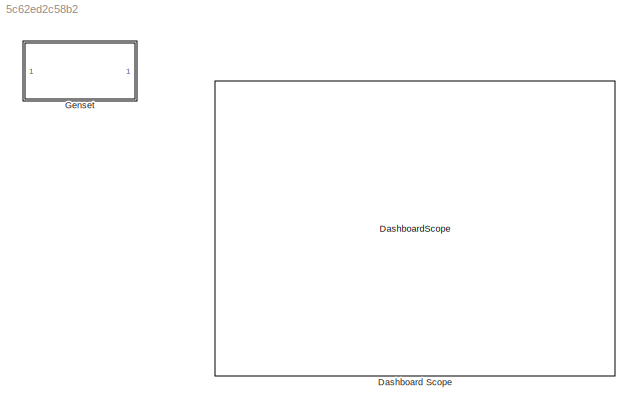
MODEL slx_5c62ed2c58b2
KIND model
CONFIG AbsTol = auto
CONFIG EnableMultiTasking = off
CONFIG FixedStep = 1
CONFIG MaxStep = auto
CONFIG MinStep = auto
CONFIG RelTol = 1e-3
CONFIG SampleTimeConstraint = Unconstrained
CONFIG SolverName = FixedStepAuto
CONFIG StartTime = 0.0
CONFIG StopTime = 3600
BLOCK [DashboardScope] Dashboard Scope
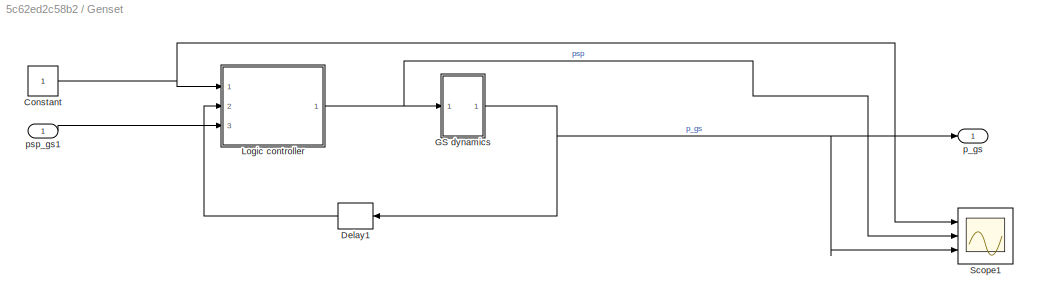
BLOCK [SubSystem] Genset
  Ports = [1, 1]
  RequestExecContextInheritance = off
BLOCK [Constant] Genset/Constant
BLOCK [Delay] Genset/Delay1
  DelayLength = 1
  InitialCondition = 0
  InputPortMap = u0
  Ports = [1, 1]
  UseCircularBuffer = on
  UserDataPersistent = on
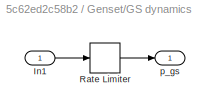
BLOCK [SubSystem] Genset/GS dynamics
  Ports = [1, 1]
  RequestExecContextInheritance = off
BLOCK [Inport] Genset/GS dynamics/In1
BLOCK [RateLimiter] Genset/GS dynamics/Rate Limiter
  FallingSlewLimit = -(psp_EP/t)/60
  RisingSlewLimit = (psp_EP/t)/60
  SampleTimeMode = inherited
BLOCK [Outport] Genset/GS dynamics/p_gs
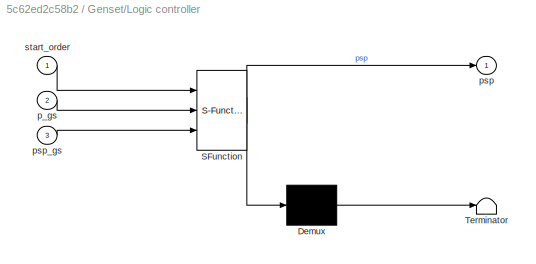
BLOCK [SubSystem] Genset/Logic controller
  AttributesFormatString = %<BlockType>
  Description = vhk,ncg,vbh,v
  ErrorFcn = Stateflow.Translate.translate
  PermitHierarchicalResolution = ExplicitOnly
  Ports = [3, 1]
  RequestExecContextInheritance = off
  SFBlockType = Chart
  TreatAsAtomicUnit = on
BLOCK [Demux] Genset/Logic controller/ Demux 
  Outputs = 1
  Ports = [1, 1]
BLOCK [S-Function] Genset/Logic controller/ SFunction 
  EnableBusSupport = on
  FunctionName = sf_sfun
  PortCounts = [3 2]
  Ports = [3, 2]
  SFcnIsStateOwnerBlock = off
  SFunctionDeploymentMode = off
  Tag = Stateflow S-Function 3
BLOCK [Terminator] Genset/Logic controller/ Terminator 
BLOCK [Inport] Genset/Logic controller/p_gs
  Port = 2
BLOCK [Outport] Genset/Logic controller/psp
BLOCK [Inport] Genset/Logic controller/psp_gs
  Port = 3
BLOCK [Inport] Genset/Logic controller/start_order
BLOCK [Scope] Genset/Scope1
  Floating = off
  NumInputPorts = 3
  Ports = [3]
  ScopeSpecificationString = Simulink.scopes.TimeScopeBlockCfg('CurrentConfiguration', extmgr.ConfigurationSet(extmgr.Configuration('Core','General UI',true),extmgr.Configuration('Core','Source UI',true),extmgr.Configuration('Sources','WiredSimulink',true),extmgr.Configuration('Visuals','Time Domain',true,'PlotType','Line','SerializedDisplays',{struct('MinYLimReal','0.9974','MaxYLimReal','1.00212','YLabelReal','','MinYLimMag'...<+1672ch>
BLOCK [Outport] Genset/p_gs
BLOCK [Inport] Genset/psp_gs1
NET Genset/Constant:1 -> Genset/Logic controller:1, Genset/Scope1:1
LINE Genset/Delay1:1 -> Genset/Logic controller:2
LINE Genset/GS dynamics/In1:1 -> Genset/GS dynamics/Rate Limiter:1
LINE Genset/GS dynamics/Rate Limiter:1 -> Genset/GS dynamics/p_gs:1
NET Genset/GS dynamics:1 -> Genset/Delay1:1, Genset/Scope1:3, Genset/p_gs:1
NET Genset/Logic controller:1 -> Genset/GS dynamics:1, Genset/Scope1:2
LINE Genset/psp_gs1:1 -> Genset/Logic controller:3
note: NET lines group one-source signal fan-out (src -> all destinations, sorted); 1:1 wires keep LINE
CHART Genset/Logic controller states=5 transitions=6
  STATE_LABEL 'start_transition\nentry : '
  STATE_LABEL 'Off\nentry : psp = 0;'
  STATE_LABEL 'on\nentry : psp = psp_gs;\n'
  STATE_LABEL 'stop_transition\nentry : psp = 0;'
  STATE_LABEL 'cooling_time'
CHART  states=0 transitions=0
